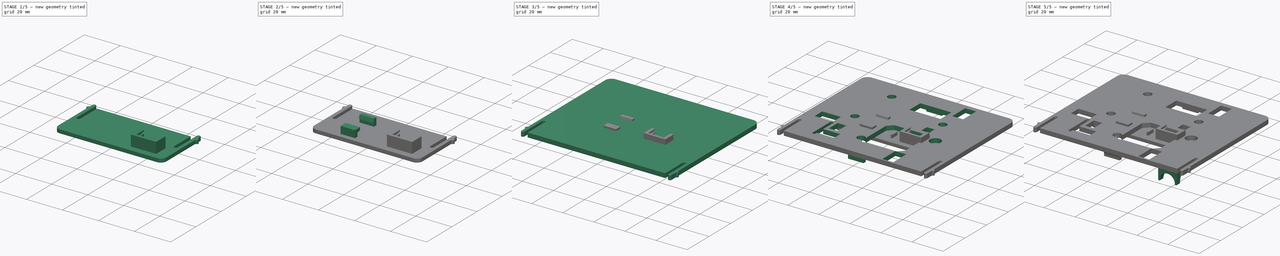
[diagram: build sequence overview — one tinted view per stage of 5, left to right]
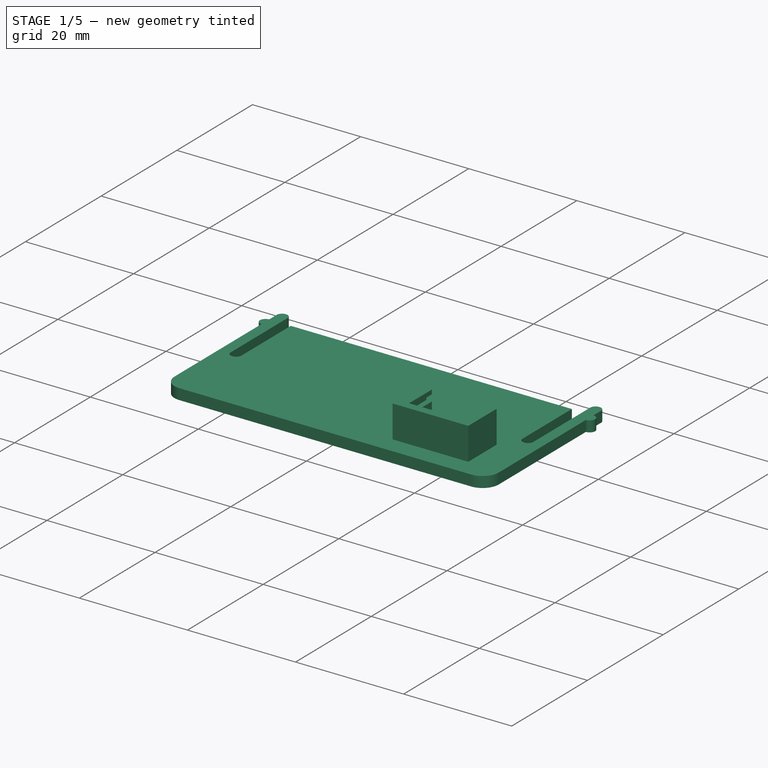
[diagram: stage 1 of 5 — iso view after this stage's code; geometry added in this stage tinted green]
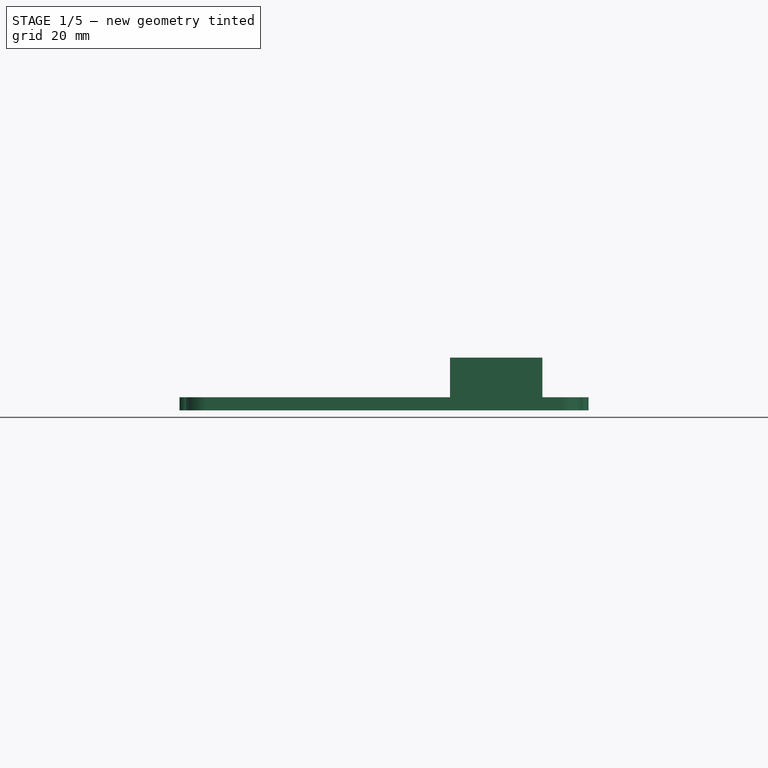
[diagram: stage 1 of 5 — front view after this stage's code; geometry added in this stage tinted green]
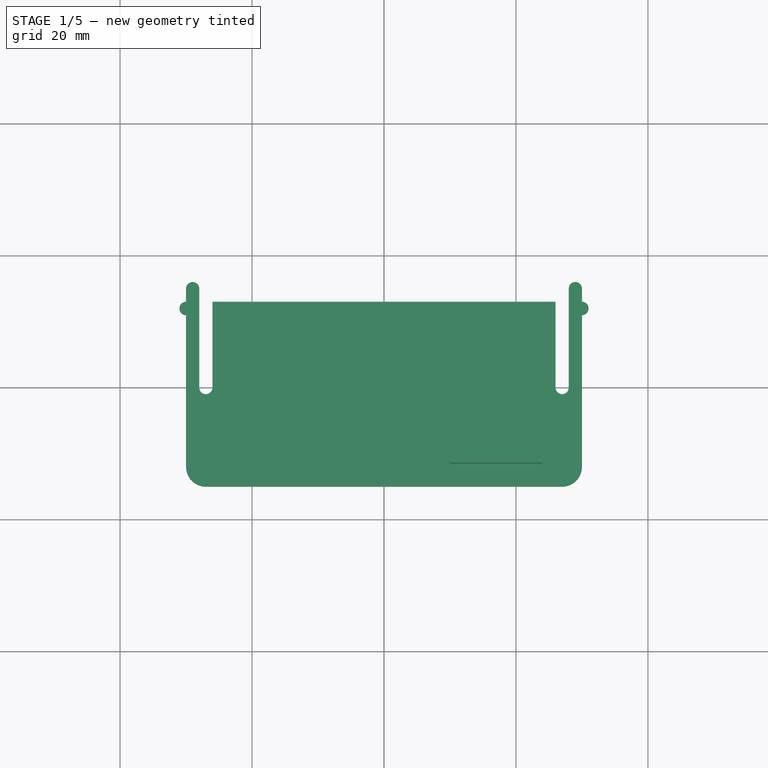
[diagram: stage 1 of 5 — top view after this stage's code; geometry added in this stage tinted green]
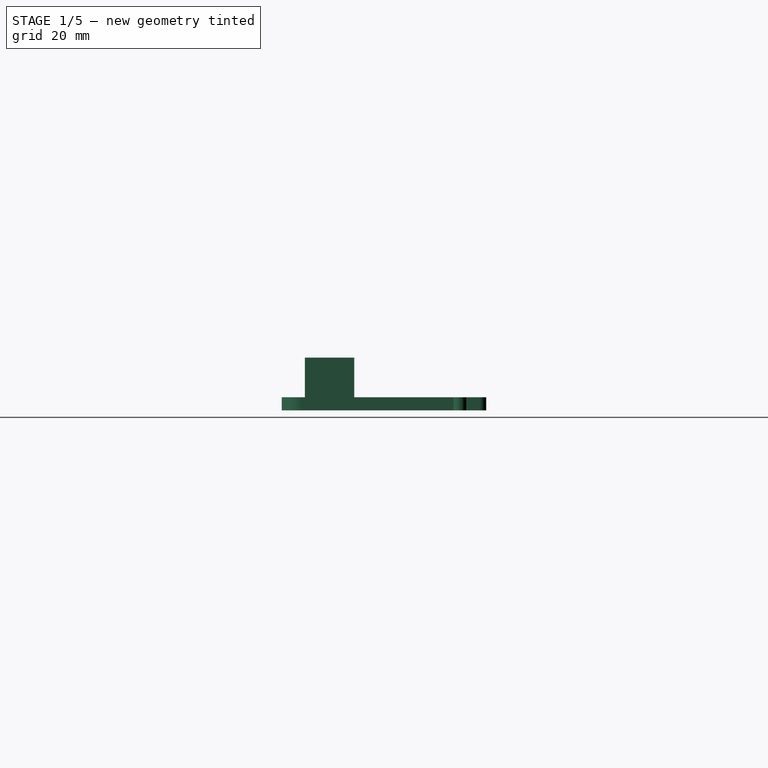
[diagram: stage 1 of 5 — right view after this stage's code; geometry added in this stage tinted green]
FCSTD DOCUMENT  (FreeCAD 1.0RUnknown)
Label: Sensors_mount
License: All rights reserved
LicenseURL: http://en.wikipedia.org/wiki/All_rights_reserved
objects: Sketcher::SketchObject×14, PartDesign::Pad×9, PartDesign::Pocket×5, PartDesign::Fillet×3, PartDesign::Body×2
note: 81 computed .brp shape members not serialized (recipe doc carries the construction recipe); baked Part::Feature solids carry a one-line shape summary decoded from their .brp

FEATURE [PartDesign::Body] Body001  label="sds mount"
  AllowCompound = false
  Group = -> [Sketch009,Pad006,Sketch010,Pocket003,Sketch011,Pad007,Sketch012,Pocket004,Fillet,Sketch013,Pad008,Fillet001,Fillet002]
  Origin = -> Origin001
  Tip = -> Fillet002
FEATURE [Sketcher::SketchObject] Sketch
  ArcFitTolerance = 1e-06
  AttachmentSupport = -> [XY_Plane,XZ_Plane]
  FullyConstrained = true
  MakeInternals = false
  MapMode = 5
  sketch-geometry (20):
    g0: LineSegment StartX=-30 StartY=11 StartZ=0 EndX=-30 EndY=-12 EndZ=0
    g1: LineSegment StartX=30 StartY=11 StartZ=0 EndX=30 EndY=-12 EndZ=0
    g2: LineSegment StartX=-27 StartY=-15 StartZ=0 EndX=27 EndY=-15 EndZ=0
    g3: ArcOfCircle CenterX=-27 CenterY=-12 CenterZ=0 NormalX=0 NormalY=0 NormalZ=1 AngleXU=0 Radius=3 StartAngle=3.14159 EndAngle=4.71239
    g4: ArcOfCircle CenterX=27 CenterY=-12 CenterZ=0 NormalX=0 NormalY=0 NormalZ=1 AngleXU=0 Radius=3 StartAngle=4.71239 EndAngle=6.28319
    g5: LineSegment StartX=-26 StartY=13 StartZ=0 EndX=26 EndY=13 EndZ=0
    g6: LineSegment StartX=26 StartY=13 StartZ=0 EndX=26 EndY=0 EndZ=0
    g7: LineSegment StartX=-26 StartY=13 StartZ=0 EndX=-26 EndY=0 EndZ=0
    g8: LineSegment StartX=-28 StartY=15 StartZ=0 EndX=-28 EndY=0 EndZ=0
    g9: LineSegment StartX=28 StartY=15 StartZ=0 EndX=28 EndY=0 EndZ=0
    g10: ArcOfCircle CenterX=-27 CenterY=0 CenterZ=0 NormalX=0 NormalY=0 NormalZ=1 AngleXU=0 Radius=1 StartAngle=3.14159 EndAngle=6.28319
    g11: ArcOfCircle CenterX=27 CenterY=0 CenterZ=0 NormalX=0 NormalY=0 NormalZ=1 AngleXU=0 Radius=1 StartAngle=3.14159 EndAngle=6.28319
    g12: ArcOfCircle CenterX=-30 CenterY=12 CenterZ=0 NormalX=0 NormalY=0 NormalZ=1 AngleXU=0 Radius=1 StartAngle=1.5708 EndAngle=4.71239
    g13: ArcOfCircle CenterX=30 CenterY=12 CenterZ=0 NormalX=0 NormalY=0 NormalZ=1 AngleXU=0 Radius=1 StartAngle=4.71239 EndAngle=7.85398
    g14: LineSegment StartX=-30 StartY=13 StartZ=0 EndX=-30 EndY=15 EndZ=0
    g15: LineSegment StartX=30 StartY=13 StartZ=0 EndX=30 EndY=15 EndZ=0
    g16: ArcOfCircle CenterX=29 CenterY=15 CenterZ=0 NormalX=0 NormalY=0 NormalZ=1 AngleXU=0 Radius=1 StartAngle=1.87e-14 EndAngle=3.14159
    g17: LineSegment [constr] StartX=28 StartY=15 StartZ=0 EndX=30 EndY=15 EndZ=0
    g18: LineSegment [constr] StartX=-30 StartY=15 StartZ=0 EndX=-28 EndY=15 EndZ=0
    g19: ArcOfCircle CenterX=-29 CenterY=15 CenterZ=0 NormalX=0 NormalY=0 NormalZ=1 AngleXU=0 Radius=1 StartAngle=6.2e-15 EndAngle=3.14159
  constraints (64):
    c: Vertical(g0)
    c: Vertical(g1)
    c: Coincident(g3,g0)
    c: Coincident(g3,g2)
    c: Coincident(g4,g2)
    c: Horizontal(g1,g4)
    c: Horizontal(g0,g3)
    c: Vertical(g3,g2)
    c: Vertical(g4,g2)
    c: Distance(g1,g0) = 60
    c: Equal(g0,g1)
    c: Symmetric(g3,g4,g-2)
    c: Horizontal(g2)
    c: Radius(g3) = 3
    c: Horizontal(g5)
    c: Coincident(g6,g5)
    c: Vertical(g6)
    c: Coincident(g7,g5)
    c: Vertical(g7)
    c: Vertical(g8)
    c: Vertical(g9)
    c: Coincident(g10,g8)
    c: Coincident(g10,g7)
    c: Coincident(g11,g6)
    c: Coincident(g11,g9)
    c: Horizontal(g8,g10)
    c: Horizontal(g10,g7)
    c: Horizontal(g6,g11)
    c: Horizontal(g11,g9)
    c: Distance(g2,g5) = 28
    c: Coincident(g12,g0)
    c: Coincident(g13,g1)
    c: Vertical(g0,g12)
    c: Vertical(g12,g12)
    c: Vertical(g1,g13)
    c: Vertical(g13,g13)
    c: Radius(g13) = 1
    c: Radius(g10) = 1
    c: Coincident(g1,g4)
    c: DistanceX(g12,g8) = 2
    c: Symmetric(g10,g11,g-1)
    c: Horizontal(g8,g9)
    c: Distance(g14) = 2
    c: Coincident(g14,g12)
    c: Vertical(g14)
    c: Coincident(g15,g13)
    c: Vertical(g15)
    c: Equal(g15,g14)
    c: Coincident(g16,g9)
    c: Coincident(g16,g15)
    c: Coincident(g17,g9)
    c: Coincident(g17,g15)
    c: Coincident(g18,g14)
    c: Coincident(g18,g8)
    c: Horizontal(g18)
    c: PointOnObject(g16,g17)
    c: Horizontal(g17)
    c: Coincident(g19,g14)
    c: Coincident(g19,g8)
    c: PointOnObject(g19,g18)
    c: Equal(g18,g17)
    c: Radius(g12) = 1
    c: Horizontal(g12,g5)
    c: DistanceY(g6,g6) = 13
FEATURE [PartDesign::Pad] Pad
  Direction = (0,0,1)
  Length = 2
  Length2 = 10
  Profile = -> Sketch
  ReferenceAxis = -> Sketch [N_Axis]
  Reversed = true
  Suppressed = false
  Type = 0
FEATURE [Sketcher::SketchObject] Sketch001
  ArcFitTolerance = 1e-06
  AttachmentSupport = -> [Pad]
  FullyConstrained = true
  MakeInternals = false
  MapMode = 5
  sketch-geometry (8):
    g0: LineSegment StartX=22 StartY=-10 StartZ=0 EndX=22 EndY=-4 EndZ=0
    g1: LineSegment StartX=22 StartY=-4 StartZ=0 EndX=24 EndY=-4 EndZ=0
    g2: LineSegment StartX=24 StartY=-4 StartZ=0 EndX=24 EndY=-11.5 EndZ=0
    g3: LineSegment StartX=24 StartY=-11.5 StartZ=0 EndX=10 EndY=-11.5 EndZ=0
    g4: LineSegment StartX=10 StartY=-11.5 StartZ=0 EndX=10 EndY=-4 EndZ=0
    g5: LineSegment StartX=10 StartY=-4 StartZ=0 EndX=12 EndY=-4 EndZ=0
    g6: LineSegment StartX=12 StartY=-4 StartZ=0 EndX=12 EndY=-10 EndZ=0
    g7: LineSegment StartX=12 StartY=-10 StartZ=0 EndX=22 EndY=-10 EndZ=0
  constraints (24):
    c: Vertical(g0)
    c: Coincident(g1,g0)
    c: Horizontal(g1)
    c: Vertical(g2)
    c: Coincident(g3,g2)
    c: Horizontal(g3)
    c: Coincident(g4,g3)
    c: Vertical(g4)
    c: Coincident(g5,g4)
    c: Horizontal(g5)
    c: Coincident(g6,g5)
    c: Vertical(g6)
    c: Coincident(g7,g6)
    c: Coincident(g7,g0)
    c: Horizontal(g7)
    c: Equal(g1,g5)
    c: Equal(g4,g2)
    c: Distance(g3,g7) = 1.5
    c: DistanceY(g0,g0) = 6
    c: Coincident(g2,g1)
    c: DistanceX(g7,g7) = 10
    c: Distance(g1,g1) = 2
    c: DistanceX(g-1,g4) = 10
    c: Distance(g4,g-1) = 4
FEATURE [PartDesign::Pad] Pad001
  BaseFeature = -> Pad
  Direction = (0,0,1)
  Length = 6
  Length2 = 10
  Profile = -> Sketch001
  ReferenceAxis = -> Sketch001 [N_Axis]
  Suppressed = false
  Type = 0
FEATURE [Sketcher::SketchObject] Sketch002
  ArcFitTolerance = 1e-06
  AttachmentSupport = -> [Pad001]
  FullyConstrained = true
  MakeInternals = false
  MapMode = 5
  Placement = pos=(0,-4,0) rot=(0,0.707107,0.707107;3.14159rad)
  sketch-geometry (8):
    g0: LineSegment StartX=-23 StartY=5.2 StartZ=0 EndX=-23 EndY=4 EndZ=0
    g1: LineSegment StartX=-23 StartY=4 StartZ=0 EndX=-11 EndY=4 EndZ=0
    g2: LineSegment StartX=-11 StartY=4 StartZ=0 EndX=-11 EndY=5.2 EndZ=0
    g3: LineSegment StartX=-11 StartY=5.2 StartZ=0 EndX=-12 EndY=5.2 EndZ=0
    g4: LineSegment StartX=-23 StartY=5.2 StartZ=0 EndX=-22 EndY=5.2 EndZ=0
    g5: LineSegment StartX=-22 StartY=5.2 StartZ=0 EndX=-22 EndY=8 EndZ=0
    g6: LineSegment StartX=-22 StartY=8 StartZ=0 EndX=-12 EndY=8 EndZ=0
    g7: LineSegment StartX=-12 StartY=5.2 StartZ=0 EndX=-12 EndY=8 EndZ=0
  constraints (24):
    c: Coincident(g0,g1)
    c: Coincident(g1,g2)
    c: Vertical(g0)
    c: Vertical(g2)
    c: Horizontal(g1)
    c: Distance(g0,g2) = 12
    c: Distance(g1,g0) = 1.2
    c: Distance(g-2,g2) = 11
    c: Coincident(g3,g2)
    c: Horizontal(g3)
    c: Coincident(g4,g0)
    c: Horizontal(g4)
    c: Coincident(g5,g4)
    c: Coincident(g6,g5)
    c: Horizontal(g6)
    c: Coincident(g7,g3)
    c: Coincident(g7,g6)
    c: Vertical(g7)
    c: Distance(g-1,g1) = 4
    c: Equal(g0,g2)
    c: DistanceX(g3,g3) = 1
    c: Distance(g4,g4) = 1
    c: Distance(g-1,g6) = 8
    c: Vertical(g5)
FEATURE [PartDesign::Pocket] Pocket
  BaseFeature = -> Pad001
  Direction = (0,-1,2e-16)
  Length = 6
  Length2 = 5
  Profile = -> Sketch002
  ReferenceAxis = -> Sketch002 [N_Axis]
  Suppressed = false
  Type = 0
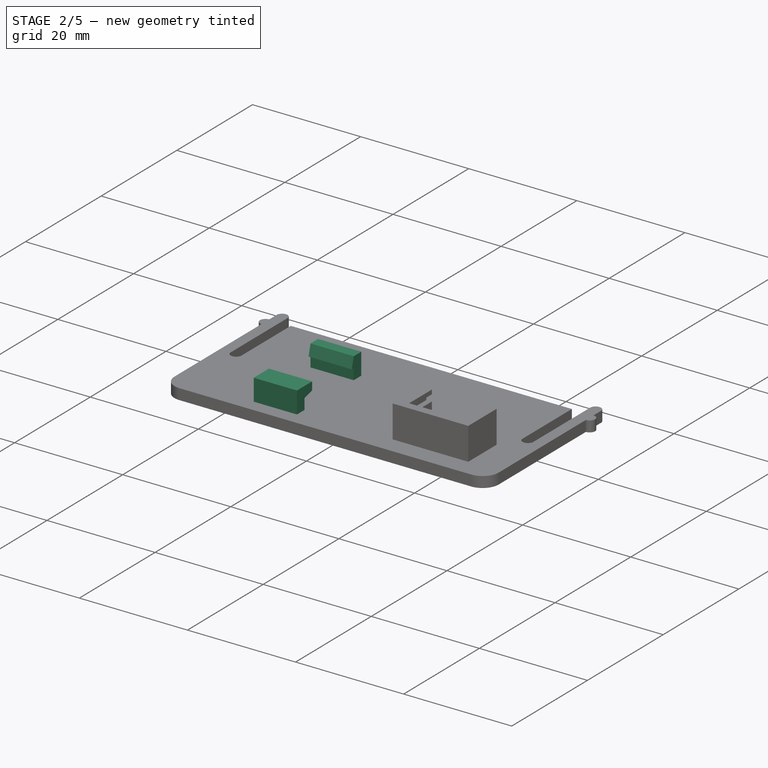
[diagram: stage 2 of 5 — iso view after this stage's code; geometry added in this stage tinted green]
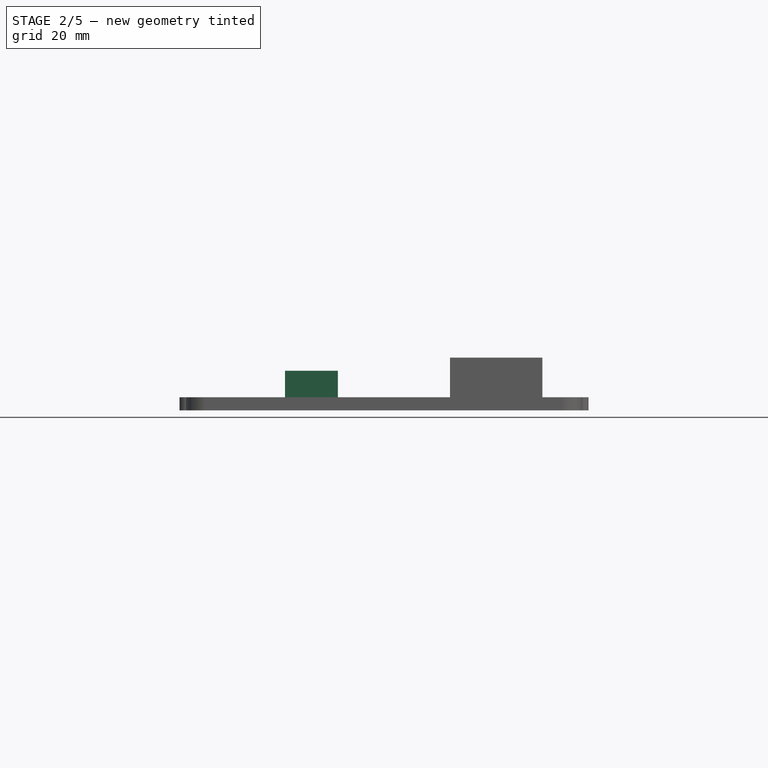
[diagram: stage 2 of 5 — front view after this stage's code; geometry added in this stage tinted green]
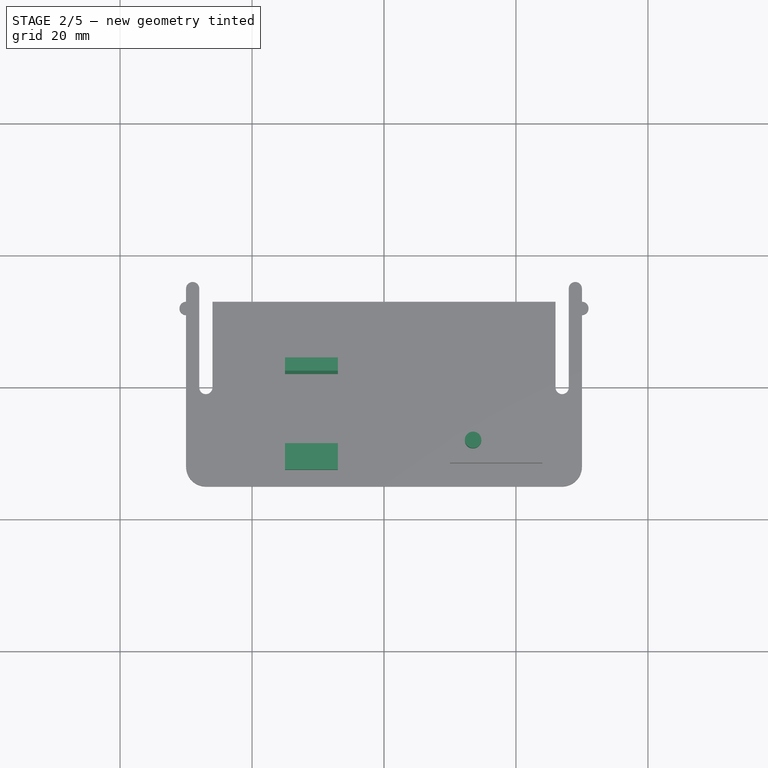
[diagram: stage 2 of 5 — top view after this stage's code; geometry added in this stage tinted green]
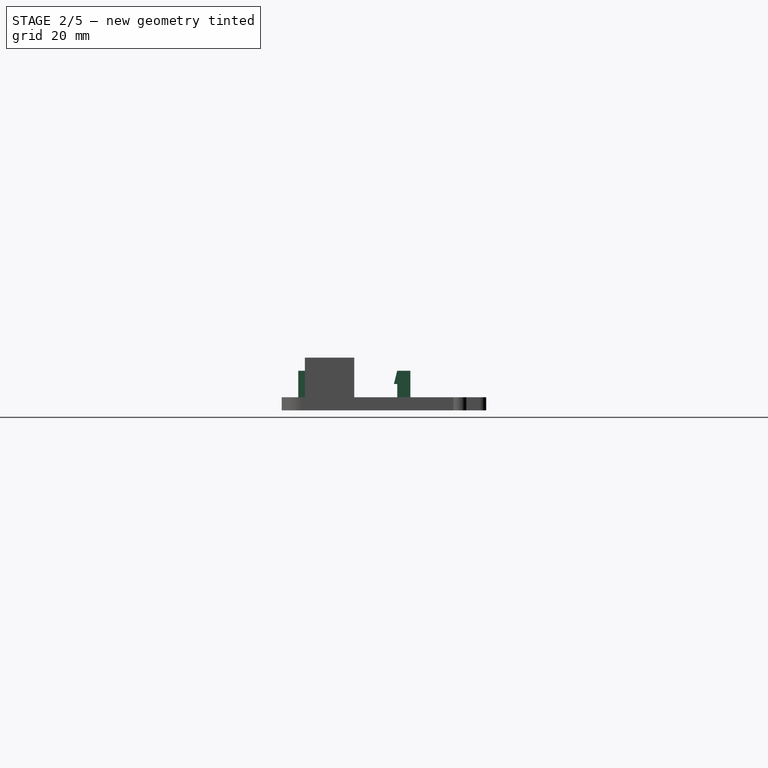
[diagram: stage 2 of 5 — right view after this stage's code; geometry added in this stage tinted green]
FEATURE [Sketcher::SketchObject] Sketch003
  ArcFitTolerance = 1e-06
  AttachmentSupport = -> [Pocket]
  FullyConstrained = true
  MakeInternals = false
  MapMode = 5
  sketch-geometry (1):
    g0: Circle CenterX=13.5 CenterY=-8 CenterZ=0 NormalX=0 NormalY=0 NormalZ=1 AngleXU=0 Radius=1.25
  constraints (3):
    c: Diameter(g0) = 2.5
    c: Distance(g0,g-2) = 13.5
    c: Distance(g0,g-1) = 8
FEATURE [PartDesign::Pad] Pad002
  BaseFeature = -> Pocket
  Direction = (0,0,1)
  Length = 6.5
  Length2 = 10
  Profile = -> Sketch003
  ReferenceAxis = -> Sketch003 [N_Axis]
  Suppressed = false
  Type = 0
FEATURE [Sketcher::SketchObject] Sketch004
  ArcFitTolerance = 1e-06
  AttachmentSupport = -> [Pad002]
  FullyConstrained = true
  MakeInternals = false
  MapMode = 5
  Placement = pos=(23,0,0) rot=(0.57735,-0.57735,-0.57735;2.0944rad)
  sketch-geometry (4):
    g0: LineSegment StartX=10 StartY=4.8 StartZ=0 EndX=4 EndY=3.25 EndZ=0
    g1: LineSegment StartX=4 StartY=3.25 StartZ=0 EndX=4 EndY=5.5 EndZ=0
    g2: LineSegment StartX=4 StartY=5.5 StartZ=0 EndX=10 EndY=5.5 EndZ=0
    g3: LineSegment StartX=10 StartY=5.5 StartZ=0 EndX=10 EndY=4.8 EndZ=0
  constraints (12):
    c: Coincident(g1,g0)
    c: Vertical(g1)
    c: Coincident(g2,g1)
    c: Horizontal(g2)
    c: Coincident(g3,g2)
    c: Coincident(g3,g0)
    c: Vertical(g3)
    c: DistanceY(g1,g1) = 2.25
    c: DistanceY(g3,g3) = 0.7
    c: DistanceX(g2,g2) = 6
    c: Distance(g-2,g1) = 4
    c: DistanceY(g-1,g0) = 3.25
FEATURE [PartDesign::Pocket] Pocket001
  BaseFeature = -> Pad002
  Direction = (1,0,0)
  Length = 11
  Length2 = -8
  Profile = -> Sketch004
  ReferenceAxis = -> Sketch004 [N_Axis]
  Reversed = true
  Suppressed = false
  Type = 4
FEATURE [Sketcher::SketchObject] Sketch005
  ArcFitTolerance = 1e-06
  AttachmentSupport = -> [Pocket001]
  FullyConstrained = true
  MakeInternals = false
  MapMode = 5
  sketch-geometry (8):
    g0: LineSegment StartX=-15 StartY=-8.5 StartZ=0 EndX=-15 EndY=-12.5 EndZ=0
    g1: LineSegment StartX=-15 StartY=-12.5 StartZ=0 EndX=-7 EndY=-12.5 EndZ=0
    g2: LineSegment StartX=-7 StartY=-12.5 StartZ=0 EndX=-7 EndY=-8.5 EndZ=0
    g3: LineSegment StartX=-7 StartY=-8.5 StartZ=0 EndX=-15 EndY=-8.5 EndZ=0
    g4: LineSegment StartX=-15 StartY=4.5 StartZ=0 EndX=-15 EndY=2 EndZ=0
    g5: LineSegment StartX=-15 StartY=2 StartZ=0 EndX=-7 EndY=2 EndZ=0
    g6: LineSegment StartX=-7 StartY=2 StartZ=0 EndX=-7 EndY=4.5 EndZ=0
    g7: LineSegment StartX=-7 StartY=4.5 StartZ=0 EndX=-15 EndY=4.5 EndZ=0
  constraints (24):
    c: Coincident(g0,g1)
    c: Coincident(g1,g2)
    c: Coincident(g2,g3)
    c: Coincident(g3,g0)
    c: Vertical(g0)
    c: Vertical(g2)
    c: Horizontal(g1)
    c: Horizontal(g3)
    c: Distance(g1,g3) = 4
    c: Distance(g-2,g2) = 7
    c: Distance(g-1,g1) = 12.5
    c: Coincident(g4,g5)
    c: Coincident(g5,g6)
    c: Coincident(g6,g7)
    c: Coincident(g7,g4)
    c: Vertical(g4)
    c: Vertical(g6)
    c: Horizontal(g5)
    c: Horizontal(g7)
    c: Distance(g4,g6) = 8
    c: Distance(g5,g7) = 2.5
    c: Distance(g7,g1) = 17
    c: Vertical(g5,g2)
    c: Equal(g3,g5)
FEATURE [PartDesign::Pad] Pad003
  BaseFeature = -> Pocket001
  Direction = (0,0,1)
  Length = 4
  Length2 = 10
  Profile = -> Sketch005
  ReferenceAxis = -> Sketch005 [N_Axis]
  Suppressed = false
  Type = 0
FEATURE [Sketcher::SketchObject] Sketch006
  ArcFitTolerance = 1e-06
  AttachmentSupport = -> [Pad003]
  FullyConstrained = true
  MakeInternals = false
  MapMode = 5
  Placement = pos=(-15,0,0) rot=(0.57735,-0.57735,-0.57735;2.0944rad)
  sketch-geometry (9):
    g0: LineSegment StartX=-2.5 StartY=4 StartZ=0 EndX=-2 EndY=2 EndZ=0
    g1: LineSegment StartX=-2 StartY=2 StartZ=0 EndX=-2.5 EndY=2 EndZ=0
    g2: LineSegment StartX=-2.5 StartY=2 StartZ=0 EndX=-2.5 EndY=0 EndZ=0
    g3: LineSegment StartX=-2.5 StartY=0 StartZ=0 EndX=10.5 EndY=0 EndZ=0
    g4: LineSegment StartX=10.5 StartY=0 StartZ=0 EndX=10.5 EndY=2 EndZ=0
    g5: LineSegment StartX=10.5 StartY=2 StartZ=0 EndX=8.5 EndY=2.5 EndZ=0
    g6: LineSegment StartX=-2.5 StartY=4 StartZ=0 EndX=0 EndY=4 EndZ=0
    g7: LineSegment StartX=0 StartY=4 StartZ=0 EndX=0 EndY=2.5 EndZ=0
    g8: LineSegment StartX=0 StartY=2.5 StartZ=0 EndX=8.5 EndY=2.5 EndZ=0
  constraints (27):
    c: Coincident(g1,g0)
    c: Horizontal(g1)
    c: Distance(g1,g1) = 0.5
    c: Vertical(g1,g0)
    c: Coincident(g2,g1)
    c: PointOnObject(g2,g-1)
    c: Vertical(g2)
    c: Coincident(g3,g2)
    c: PointOnObject(g3,g-1)
    c: Distance(g4) = 2
    c: Coincident(g4,g3)
    c: Vertical(g4)
    c: Coincident(g5,g4)
    c: Coincident(g6,g0)
    c: Horizontal(g6)
    c: Coincident(g7,g6)
    c: Vertical(g7)
    c: Coincident(g8,g5)
    c: Coincident(g8,g7)
    c: Distance(g4,g2) = 13
    c: Distance(g3,g6) = 4
    c: Distance(g2,g-2) = 2.5
    c: Distance(g3,g8) = 2.5
    c: Horizontal(g8)
    c: DistanceX(g5,g4) = 2
    c: DistanceX(g6,g6) = 2.5
    c: Horizontal(g2,g4)
FEATURE [PartDesign::Pocket] Pocket002
  BaseFeature = -> Pad003
  Direction = (1,0,0)
  Length = 8
  Length2 = 5
  Profile = -> Sketch006
  ReferenceAxis = -> Sketch006 [N_Axis]
  Suppressed = false
  Type = 0
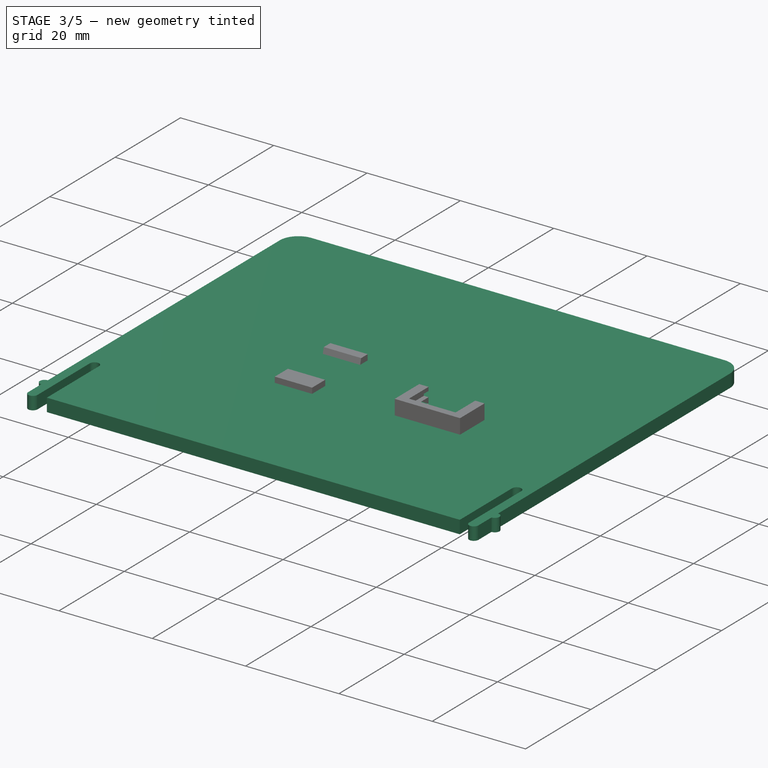
[diagram: stage 3 of 5 — iso view after this stage's code; geometry added in this stage tinted green]
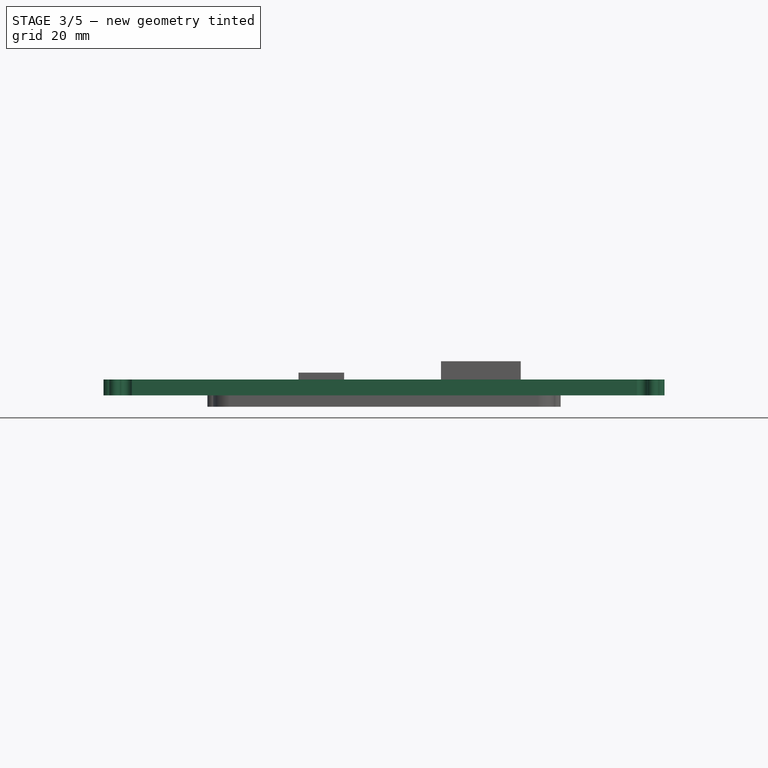
[diagram: stage 3 of 5 — front view after this stage's code; geometry added in this stage tinted green]
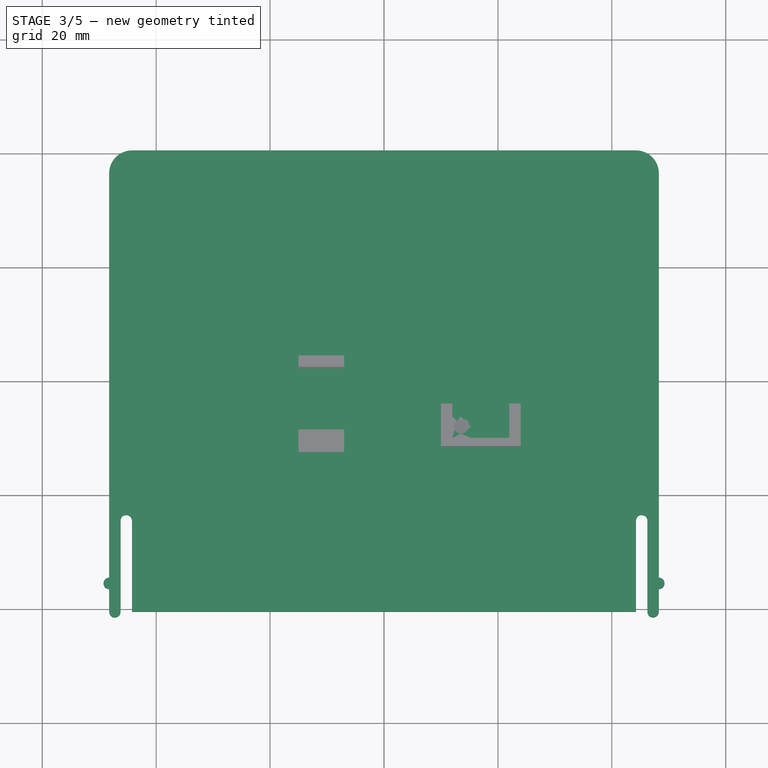
[diagram: stage 3 of 5 — top view after this stage's code; geometry added in this stage tinted green]
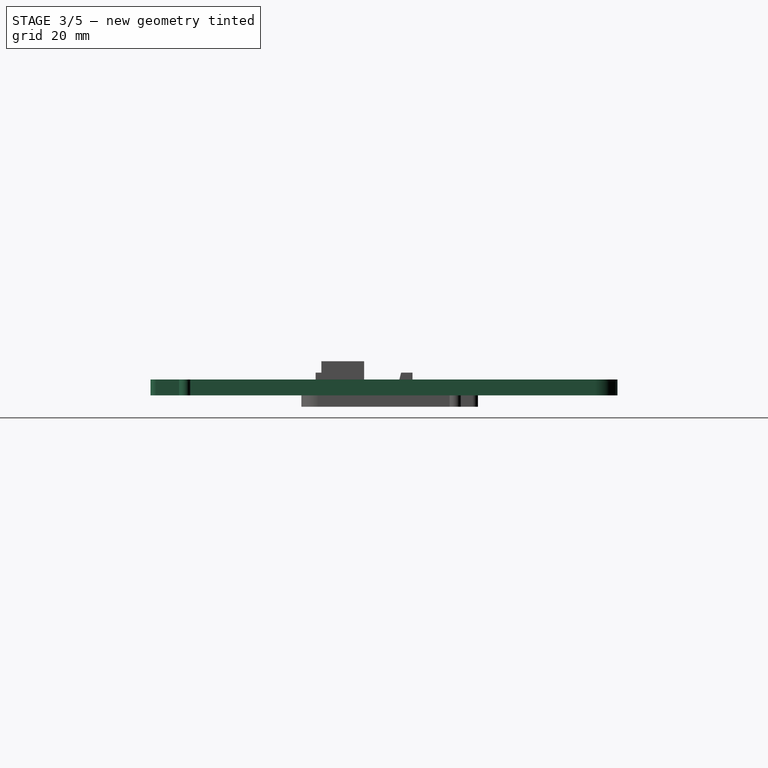
[diagram: stage 3 of 5 — right view after this stage's code; geometry added in this stage tinted green]
FEATURE [Sketcher::SketchObject] Sketch009
  ArcFitTolerance = 1e-06
  AttachmentSupport = -> [XY_Plane001]
  FullyConstrained = true
  MakeInternals = false
  MapMode = 5
  sketch-geometry (24):
    g0: LineSegment StartX=-48.25 StartY=36.5 StartZ=0 EndX=-48.25 EndY=-34.5 EndZ=0
    g1: LineSegment StartX=-44.25 StartY=40.5 StartZ=0 EndX=44.25 EndY=40.5 EndZ=0
    g2: LineSegment StartX=48.25 StartY=36.5 StartZ=0 EndX=48.25 EndY=-34.5 EndZ=0
    g3: ArcOfCircle CenterX=-44.25 CenterY=36.5 CenterZ=0 NormalX=0 NormalY=0 NormalZ=1 AngleXU=0 Radius=4 StartAngle=1.5708 EndAngle=3.14159
    g4: ArcOfCircle CenterX=44.25 CenterY=36.5 CenterZ=0 NormalX=0 NormalY=0 NormalZ=1 AngleXU=0 Radius=4 StartAngle=0 EndAngle=1.5708
    g5: ArcOfCircle CenterX=-48.25 CenterY=-35.5 CenterZ=0 NormalX=0 NormalY=0 NormalZ=1 AngleXU=0 Radius=1 StartAngle=1.5708 EndAngle=4.71239
    g6: ArcOfCircle CenterX=48.25 CenterY=-35.5 CenterZ=0 NormalX=0 NormalY=0 NormalZ=1 AngleXU=0 Radius=1 StartAngle=4.71239 EndAngle=7.85398
    g7: ArcOfCircle CenterX=-47.25 CenterY=-40.5 CenterZ=0 NormalX=0 NormalY=0 NormalZ=1 AngleXU=0 Radius=1 StartAngle=3.14159 EndAngle=6.28319
    g8: ArcOfCircle CenterX=47.25 CenterY=-40.5 CenterZ=0 NormalX=0 NormalY=0 NormalZ=1 AngleXU=0 Radius=1 StartAngle=3.14159 EndAngle=6.28319
    g9: LineSegment [constr] StartX=-48.25 StartY=-34.5 StartZ=0 EndX=-48.25 EndY=-36.5 EndZ=0
    g10: LineSegment [constr] StartX=48.25 StartY=-34.5 StartZ=0 EndX=48.25 EndY=-36.5 EndZ=0
    g11: LineSegment StartX=-48.25 StartY=-36.5 StartZ=0 EndX=-48.25 EndY=-40.5 EndZ=0
    g12: LineSegment StartX=48.25 StartY=-36.5 StartZ=0 EndX=48.25 EndY=-40.5 EndZ=0
    g13: LineSegment StartX=46.25 StartY=-40.5 StartZ=0 EndX=46.25 EndY=-24.5 EndZ=0
    g14: LineSegment StartX=44.25 StartY=-24.5 StartZ=0 EndX=44.25 EndY=-40.5 EndZ=0
    g15: LineSegment StartX=-46.25 StartY=-40.5 StartZ=0 EndX=-46.25 EndY=-24.5 EndZ=0
    g16: LineSegment StartX=-44.25 StartY=-24.5 StartZ=0 EndX=-44.25 EndY=-40.5 EndZ=0
    g17: LineSegment StartX=-44.25 StartY=-40.5 StartZ=0 EndX=44.25 EndY=-40.5 EndZ=0
    g18: ArcOfCircle CenterX=-45.25 CenterY=-24.5 CenterZ=0 NormalX=0 NormalY=0 NormalZ=1 AngleXU=0 Radius=1 StartAngle=5e-16 EndAngle=3.14159
    g19: ArcOfCircle CenterX=45.25 CenterY=-24.5 CenterZ=0 NormalX=0 NormalY=0 NormalZ=1 AngleXU=0 Radius=1 StartAngle=2.24e-14 EndAngle=3.14159
    g20: LineSegment [constr] StartX=-48.25 StartY=-40.5 StartZ=0 EndX=-46.25 EndY=-40.5 EndZ=0
    g21: LineSegment [constr] StartX=-46.25 StartY=-24.5 StartZ=0 EndX=-44.25 EndY=-24.5 EndZ=0
    g22: LineSegment [constr] StartX=44.25 StartY=-24.5 StartZ=0 EndX=46.25 EndY=-24.5 EndZ=0
    g23: LineSegment [constr] StartX=46.25 StartY=-40.5 StartZ=0 EndX=48.25 EndY=-40.5 EndZ=0
  constraints (72):
    c: Vertical(g0)
    c: Vertical(g2)
    c: Coincident(g3,g0)
    c: Coincident(g3,g1)
    c: Coincident(g4,g1)
    c: Coincident(g4,g2)
    c: Vertical(g1,g3)
    c: Horizontal(g0,g3)
    c: Vertical(g1,g4)
    c: Horizontal(g4,g2)
    c: Horizontal(g0,g2)
    c: Distance(g0,g1) = 75
    c: Distance(g2,g0) = 96.5
    c: Radius(g3) = 4
    c: Horizontal(g4,g3)
    c: Coincident(g5,g0)
    c: Coincident(g6,g2)
    c: Coincident(g9,g0)
    c: Coincident(g9,g5)
    c: Vertical(g9)
    c: Coincident(g10,g2)
    c: Coincident(g10,g6)
    c: Vertical(g10)
    c: PointOnObject(g6,g10)
    c: PointOnObject(g5,g9)
    c: Equal(g9,g10)
    c: DistanceY(g9,g9) = 2
    c: Coincident(g11,g5)
    c: Coincident(g11,g7)
    c: Vertical(g11)
    c: Coincident(g12,g6)
    c: Coincident(g12,g8)
    c: Coincident(g13,g8)
    c: Vertical(g13)
    c: Vertical(g14)
    c: Coincident(g15,g7)
    c: Vertical(g15)
    c: Vertical(g16)
    c: Coincident(g17,g16)
    c: Coincident(g17,g14)
    c: Horizontal(g17)
    c: Coincident(g18,g15)
    c: Coincident(g18,g16)
    c: Coincident(g19,g14)
    c: Coincident(g19,g13)
    c: Horizontal(g16,g14)
    c: Vertical(g12)
    c: Coincident(g20,g7)
    c: Coincident(g20,g7)
    c: Coincident(g21,g15)
    c: Coincident(g21,g16)
    c: Coincident(g22,g14)
    c: Coincident(g22,g13)
    c: Coincident(g23,g8)
    c: Coincident(g23,g8)
    c: Horizontal(g23)
    c: PointOnObject(g8,g23)
    c: Horizontal(g8,g14)
    c: Horizontal(g22)
    c: PointOnObject(g19,g22)
    c: PointOnObject(g18,g21)
    c: Horizontal(g21)
    c: PointOnObject(g7,g20)
    c: Horizontal(g20)
    c: Horizontal(g7,g16)
    c: Equal(g23,g22)
    c: Equal(g22,g21)
    c: Equal(g21,g20)
    c: Symmetric(g1,g1,g-2)
    c: Distance(g17,g1) = 81
    c: DistanceY(g16,g16) = 16
    c: Symmetric(g14,g1,g-1)
FEATURE [PartDesign::Pad] Pad006
  Direction = (0,0,1)
  Length = 2.8
  Length2 = 10
  Profile = -> Sketch009
  ReferenceAxis = -> Sketch009 [N_Axis]
  Suppressed = false
  Type = 0
FEATURE [Sketcher::SketchObject] Sketch007
  ArcFitTolerance = 1e-06
  AttachmentSupport = -> [Pocket002]
  FullyConstrained = true
  MakeInternals = false
  MapMode = 5
  sketch-geometry (8):
    g0: LineSegment StartX=4.5 StartY=-10.5 StartZ=0 EndX=4.5 EndY=-5.5 EndZ=0
    g1: LineSegment StartX=4.5 StartY=-5.5 StartZ=0 EndX=3.5 EndY=-5.5 EndZ=0
    g2: LineSegment StartX=3.5 StartY=-5.5 StartZ=0 EndX=3.5 EndY=-10.5 EndZ=0
    g3: LineSegment StartX=3.5 StartY=-10.5 StartZ=0 EndX=4.5 EndY=-10.5 EndZ=0
    g4: LineSegment StartX=-25.5 StartY=-10.5 StartZ=0 EndX=-25.5 EndY=-5.5 EndZ=0
    g5: LineSegment StartX=-25.5 StartY=-5.5 StartZ=0 EndX=-26.5 EndY=-5.5 EndZ=0
    g6: LineSegment StartX=-26.5 StartY=-5.5 StartZ=0 EndX=-26.5 EndY=-10.5 EndZ=0
    g7: LineSegment StartX=-26.5 StartY=-10.5 StartZ=0 EndX=-25.5 EndY=-10.5 EndZ=0
  constraints (24):
    c: Coincident(g0,g1)
    c: Coincident(g1,g2)
    c: Coincident(g2,g3)
    c: Coincident(g3,g0)
    c: Vertical(g0)
    c: Vertical(g2)
    c: Horizontal(g1)
    c: Horizontal(g3)
    c: Distance(g1,g3) = 5
    c: Coincident(g4,g5)
    c: Coincident(g5,g6)
    c: Coincident(g6,g7)
    c: Coincident(g7,g4)
    c: Vertical(g4)
    c: Vertical(g6)
    c: Horizontal(g5)
    c: Horizontal(g7)
    c: Distance(g4,g6) = 1
    c: Equal(g0,g6)
    c: Distance(g2,g4) = 29
    c: Equal(g3,g7)
    c: Horizontal(g2,g4)
    c: Distance(g-1,g5) = 5.5
    c: Distance(g-2,g4) = 25.5
FEATURE [PartDesign::Pad] Pad004
  BaseFeature = -> Pocket002
  Direction = (0,0,1)
  Length = 2
  Length2 = 10
  Profile = -> Sketch007
  ReferenceAxis = -> Sketch007 [N_Axis]
  Suppressed = false
  Type = 0
FEATURE [Sketcher::SketchObject] Sketch008
  ArcFitTolerance = 1e-06
  AttachmentSupport = -> [Pad004]
  FullyConstrained = true
  MakeInternals = false
  MapMode = 5
  sketch-geometry (5):
    g0: LineSegment StartX=12 StartY=-10 StartZ=0 EndX=12 EndY=-6.25 EndZ=0
    g1: LineSegment StartX=12 StartY=-10 StartZ=0 EndX=15.25 EndY=-10 EndZ=0
    g2: LineSegment StartX=15.25 StartY=-10 StartZ=0 EndX=15.25 EndY=-8 EndZ=0
    g3: LineSegment StartX=12 StartY=-6.25 StartZ=0 EndX=13.5 EndY=-6.25 EndZ=0
    g4: ArcOfCircle CenterX=13.5 CenterY=-8 CenterZ=0 NormalX=0 NormalY=0 NormalZ=1 AngleXU=0 Radius=1.75 StartAngle=0 EndAngle=1.5708
  constraints (16):
    c: Vertical(g0)
    c: Coincident(g1,g0)
    c: Horizontal(g1)
    c: Coincident(g2,g1)
    c: Vertical(g2)
    c: Coincident(g3,g0)
    c: Horizontal(g3)
    c: Coincident(g4,g3)
    c: Coincident(g4,g2)
    c: Vertical(g4,g3)
    c: Horizontal(g4,g2)
    c: Radius(g4) = 1.75
    c: Distance(g4,g-1) = 8
    c: DistanceX(g-1,g4) = 13.5
    c: DistanceY(g2,g2) = 2
    c: DistanceX(g3,g3) = 1.5
FEATURE [PartDesign::Pad] Pad005
  BaseFeature = -> Pad004
  Direction = (0,0,1)
  Length = 4
  Length2 = 10
  Profile = -> Sketch008
  ReferenceAxis = -> Sketch008 [N_Axis]
  Suppressed = false
  Type = 0
FEATURE [PartDesign::Body] Body  label="sensors mount"
  AllowCompound = false
  Group = -> [Sketch,Pad,Sketch001,Pad001,Sketch002,Pocket,Sketch003,Pad002,Sketch004,Pocket001,Sketch005,Pad003,Sketch006,Pocket002,Sketch007,Pad004,Sketch008,Pad005]
  Origin = -> Origin
  Placement = pos=(0,-61,0) rot=(0,0,1;0rad)
  Tip = -> Pad005
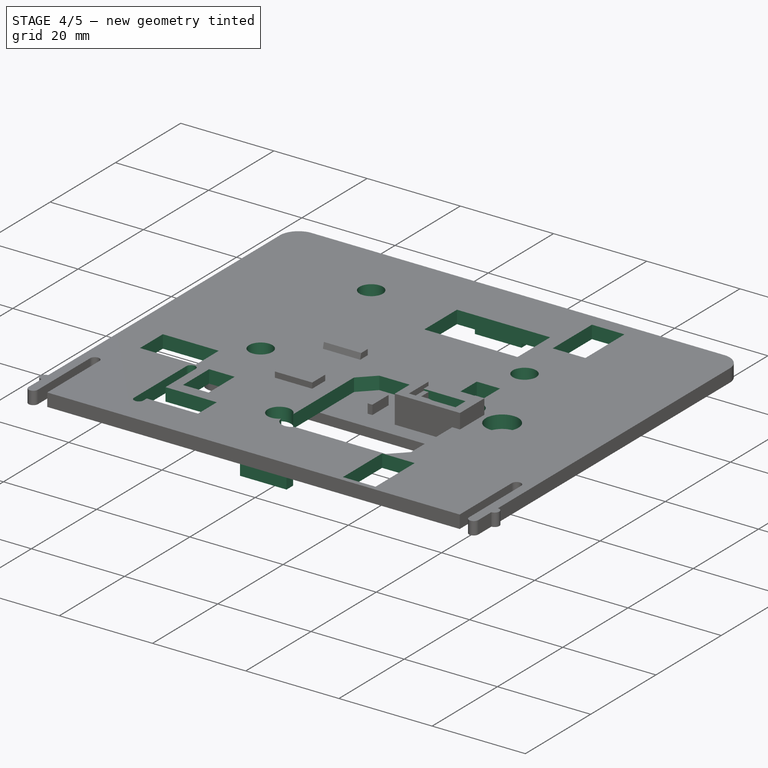
[diagram: stage 4 of 5 — iso view after this stage's code; geometry added in this stage tinted green]
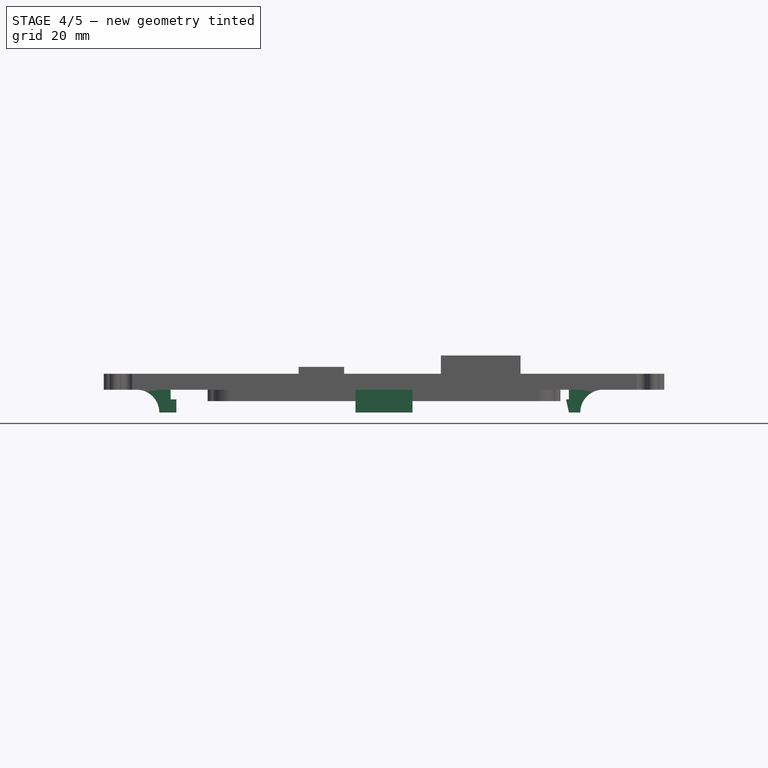
[diagram: stage 4 of 5 — front view after this stage's code; geometry added in this stage tinted green]
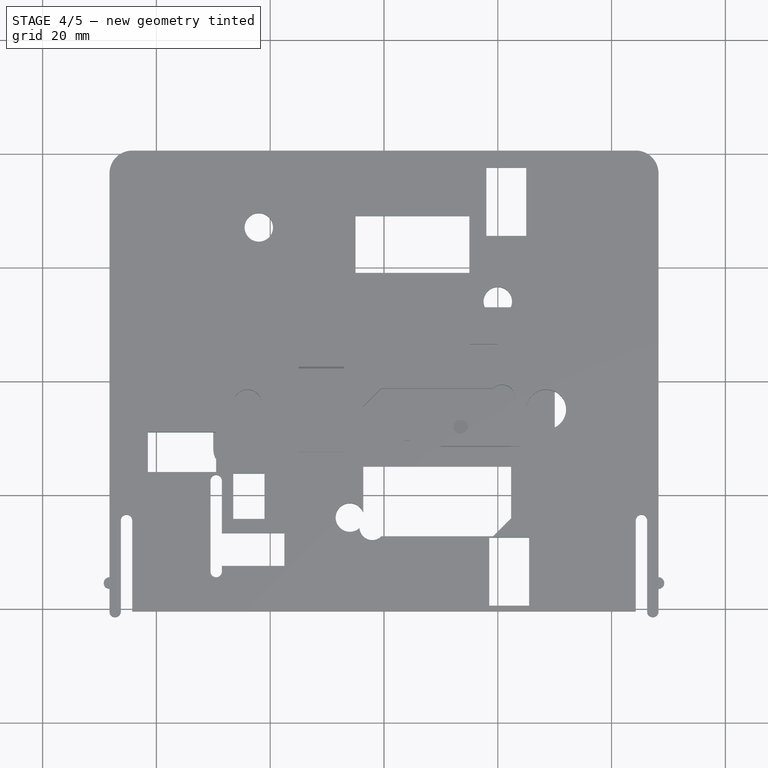
[diagram: stage 4 of 5 — top view after this stage's code; geometry added in this stage tinted green]
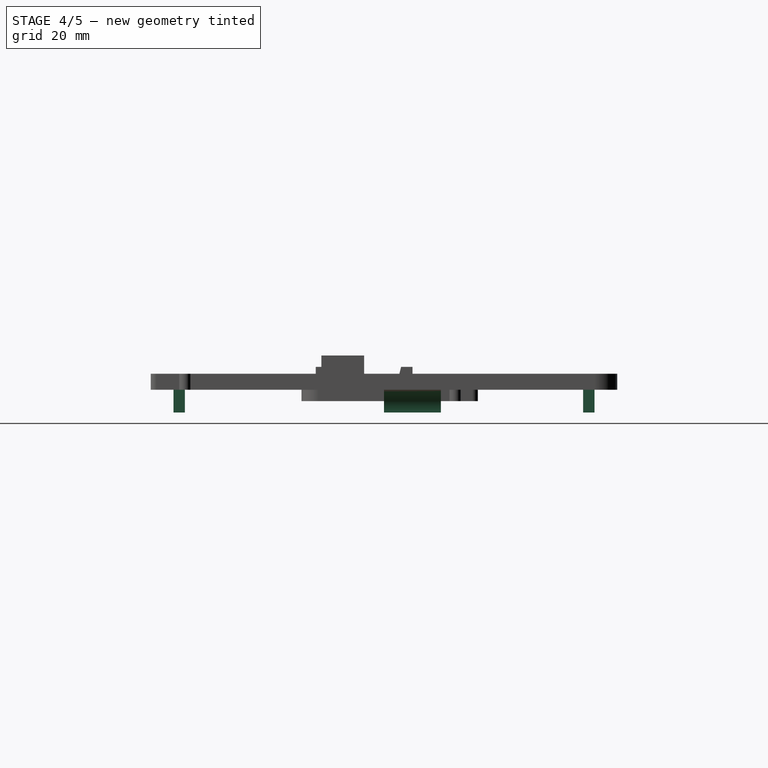
[diagram: stage 4 of 5 — right view after this stage's code; geometry added in this stage tinted green]
FEATURE [Sketcher::SketchObject] Sketch010
  ArcFitTolerance = 1e-06
  AttachmentSupport = -> [Pad006]
  FullyConstrained = true
  MakeInternals = false
  MapMode = 5
  Placement = pos=(0,0,2.8) rot=(0,0,1;0rad)
  sketch-geometry (51):
    g0: LineSegment [constr] StartX=-37.5 StartY=34.5 StartZ=0 EndX=-37.5 EndY=-35.5 EndZ=0
    g1: LineSegment [constr] StartX=-37.5 StartY=-35.5 StartZ=0 EndX=32.5 EndY=-35.5 EndZ=0
    g2: LineSegment [constr] StartX=32.5 StartY=-35.5 StartZ=0 EndX=32.5 EndY=34.5 EndZ=0
    g3: LineSegment [constr] StartX=32.5 StartY=34.5 StartZ=0 EndX=-37.5 EndY=34.5 EndZ=0
    g4: LineSegment StartX=-5 StartY=29 StartZ=0 EndX=-5 EndY=19 EndZ=0
    g5: LineSegment StartX=-5 StartY=19 StartZ=0 EndX=15 EndY=19 EndZ=0
    g6: LineSegment StartX=15 StartY=19 StartZ=0 EndX=15 EndY=29 EndZ=0
    g7: LineSegment StartX=15 StartY=29 StartZ=0 EndX=-5 EndY=29 EndZ=0
    g8: Circle CenterX=-22 CenterY=27 CenterZ=0 NormalX=0 NormalY=0 NormalZ=1 AngleXU=0 Radius=2.5
    g9: Circle CenterX=20 CenterY=14 CenterZ=0 NormalX=0 NormalY=0 NormalZ=1 AngleXU=0 Radius=2.5
    g10: Circle CenterX=-24 CenterY=-4 CenterZ=0 NormalX=0 NormalY=0 NormalZ=1 AngleXU=0 Radius=2.5
    g11: Circle CenterX=28.5 CenterY=-5 CenterZ=0 NormalX=0 NormalY=0 NormalZ=1 AngleXU=0 Radius=3.5
    g12: LineSegment StartX=18 StartY=37.5 StartZ=0 EndX=18 EndY=25.5 EndZ=0
    g13: LineSegment StartX=18 StartY=25.5 StartZ=0 EndX=25 EndY=25.5 EndZ=0
    g14: LineSegment StartX=25 StartY=25.5 StartZ=0 EndX=25 EndY=37.5 EndZ=0
    g15: LineSegment StartX=25 StartY=37.5 StartZ=0 EndX=18 EndY=37.5 EndZ=0
    g16: LineSegment StartX=18.5 StartY=-39.5 StartZ=0 EndX=25.5 EndY=-39.5 EndZ=0
    g17: LineSegment StartX=25.5 StartY=-39.5 StartZ=0 EndX=25.5 EndY=-27.5 EndZ=0
    g18: LineSegment StartX=25.5 StartY=-27.5 StartZ=0 EndX=18.5 EndY=-27.5 EndZ=0
    g19: LineSegment StartX=18.5 StartY=-27.5 StartZ=0 EndX=18.5 EndY=-39.5 EndZ=0
    g20: LineSegment StartX=-41.5 StartY=-9 StartZ=0 EndX=-41.5 EndY=-16 EndZ=0
    g21: LineSegment StartX=-41.5 StartY=-16 StartZ=0 EndX=-29.5 EndY=-16 EndZ=0
    g22: LineSegment StartX=-29.5 StartY=-16 StartZ=0 EndX=-29.5 EndY=-9 EndZ=0
    g23: LineSegment StartX=-29.5 StartY=-9 StartZ=0 EndX=-41.5 EndY=-9 EndZ=0
    g24: LineSegment StartX=-26.5 StartY=-16.25 StartZ=0 EndX=-26.5 EndY=-24.25 EndZ=0
    g25: LineSegment StartX=-26.5 StartY=-24.25 StartZ=0 EndX=-21 EndY=-24.25 EndZ=0
    g26: LineSegment StartX=-21 StartY=-24.25 StartZ=0 EndX=-21 EndY=-16.25 EndZ=0
    g27: LineSegment StartX=-21 StartY=-16.25 StartZ=0 EndX=-26.5 EndY=-16.25 EndZ=0
    g28: ArcOfCircle CenterX=-29.5 CenterY=-17.5 CenterZ=0 NormalX=0 NormalY=0 NormalZ=1 AngleXU=0 Radius=1 StartAngle=0 EndAngle=3.14159
    g29: ArcOfCircle CenterX=-29.5 CenterY=-33.5 CenterZ=0 NormalX=0 NormalY=0 NormalZ=1 AngleXU=0 Radius=1 StartAngle=3.14159 EndAngle=6.28319
    g30: LineSegment StartX=-30.5 StartY=-17.5 StartZ=0 EndX=-30.5 EndY=-33.5 EndZ=0
    g31: LineSegment StartX=-28.5 StartY=-17.5 StartZ=0 EndX=-28.5 EndY=-26.75 EndZ=0
    g32: LineSegment StartX=-28.5 StartY=-26.75 StartZ=0 EndX=-17.5 EndY=-26.75 EndZ=0
    g33: LineSegment StartX=-17.5 StartY=-26.75 StartZ=0 EndX=-17.5 EndY=-32.5 EndZ=0
    g34: LineSegment StartX=-17.5 StartY=-32.5 StartZ=0 EndX=-28.5 EndY=-32.5 EndZ=0
    g35: LineSegment StartX=-28.5 StartY=-33.5 StartZ=0 EndX=-28.5 EndY=-32.5 EndZ=0
    g36: ArcOfCircle CenterX=20.759 CenterY=-2.89099 CenterZ=0 NormalX=0 NormalY=0 NormalZ=1 AngleXU=0 Radius=2.25 StartAngle=5.49779 EndAngle=8.63938
    g37: ArcOfCircle CenterX=-6 CenterY=-24 CenterZ=0 NormalX=0 NormalY=0 NormalZ=1 AngleXU=0 Radius=2.5 StartAngle=0.348166 EndAngle=5.45726
    g38: ArcOfCircle CenterX=-2.05901 CenterY=-25.709 CenterZ=0 NormalX=0 NormalY=0 NormalZ=1 AngleXU=0 Radius=2.25 StartAngle=3.19893 EndAngle=5.49779
    g39: LineSegment StartX=-3.65 StartY=-23.1471 StartZ=0 EndX=-3.65 EndY=-4.48198 EndZ=0
    g40: LineSegment StartX=-3.65 StartY=-4.48198 StartZ=0 EndX=-0.468019 EndY=-1.3 EndZ=0
    g41: LineSegment StartX=-0.468019 StartY=-1.3 StartZ=0 EndX=19.168 EndY=-1.3 EndZ=0
    g42: LineSegment StartX=22.35 StartY=-4.48198 StartZ=0 EndX=22.35 EndY=-24.118 EndZ=0
    g43: LineSegment StartX=22.35 StartY=-24.118 StartZ=0 EndX=19.168 EndY=-27.3 EndZ=0
    g44: LineSegment StartX=19.168 StartY=-27.3 StartZ=0 EndX=-0.468019 EndY=-27.3 EndZ=0
    g45: LineSegment [constr] StartX=19.168 StartY=-1.3 StartZ=0 EndX=22.35 EndY=-4.48198 EndZ=0
    g46: LineSegment [constr] StartX=-0.468019 StartY=-27.3 StartZ=0 EndX=-3.65 EndY=-24.118 EndZ=0
    g47: LineSegment StartX=15 StartY=6.5 StartZ=0 EndX=15 EndY=1.5 EndZ=0
    g48: LineSegment StartX=15 StartY=1.5 StartZ=0 EndX=20 EndY=1.5 EndZ=0
    g49: LineSegment StartX=20 StartY=1.5 StartZ=0 EndX=20 EndY=6.5 EndZ=0
    g50: LineSegment StartX=20 StartY=6.5 StartZ=0 EndX=15 EndY=6.5 EndZ=0
  constraints (154):
    c: Coincident(g0,g1)
    c: Coincident(g1,g2)
    c: Coincident(g2,g3)
    c: Coincident(g3,g0)
    c: Vertical(g0)
    c: Vertical(g2)
    c: Horizontal(g1)
    c: Horizontal(g3)
    c: DistanceX(g3,g3) = 70
    c: Equal(g3,g2)
    c: Coincident(g4,g5)
    c: Coincident(g5,g6)
    c: Coincident(g6,g7)
    c: Coincident(g7,g4)
    c: Vertical(g4)
    c: Vertical(g6)
    c: Horizontal(g5)
    c: Horizontal(g7)
    c: DistanceY(g0,g-1) = 35.5
    c: DistanceX(g0,g-1) = 37.5
    c: Coincident(g12,g13)
    c: Coincident(g13,g14)
    c: Coincident(g14,g15)
    c: Coincident(g15,g12)
    c: Vertical(g12)
    c: Vertical(g14)
    c: Horizontal(g13)
    c: Horizontal(g15)
    c: Distance(g12,g14) = 7
    c: Distance(g13,g15) = 12
    c: Coincident(g16,g17)
    c: Coincident(g17,g18)
    c: Coincident(g18,g19)
    c: Coincident(g19,g16)
    c: Horizontal(g16)
    c: Horizontal(g18)
    c: Vertical(g17)
    c: Vertical(g19)
    c: Distance(g17,g19) = 7
    c: Distance(g16,g18) = 12
    c: Coincident(g20,g21)
    c: Coincident(g21,g22)
    c: Coincident(g22,g23)
    c: Coincident(g23,g20)
    c: Vertical(g20)
    c: Vertical(g22)
    c: Horizontal(g21)
    c: Horizontal(g23)
    c: Distance(g20,g22) = 12
    c: Distance(g21,g23) = 7
    c: Coincident(g24,g25)
    c: Coincident(g25,g26)
    c: Coincident(g26,g27)
    c: Coincident(g27,g24)
    c: Vertical(g24)
    c: Vertical(g26)
    c: Horizontal(g25)
    c: Horizontal(g27)
    c: Tangent(g28,g30) = -1.5708
    c: Tangent(g29,g30) = -1.5708
    c: Equal(g28,g29)
    c: Coincident(g31,g28)
    c: Vertical(g31)
    c: Coincident(g32,g31)
    c: Horizontal(g32)
    c: Coincident(g33,g32)
    c: Vertical(g33)
    c: Coincident(g34,g33)
    c: Horizontal(g34)
    c: Coincident(g35,g29)
    c: Coincident(g35,g34)
    c: Vertical(g35)
    c: DistanceY(g29,g28) = 16
    c: Horizontal(g29,g29)
    c: Vertical(g34,g31)
    c: Horizontal(g28,g28)
    c: Radius(g29) = 1
    c: Coincident(g38,g37)
    c: Coincident(g39,g37)
    c: Vertical(g39)
    c: Coincident(g40,g39)
    c: Coincident(g41,g36)
    c: Horizontal(g41)
    c: Coincident(g42,g36)
    c: Vertical(g42)
    c: Coincident(g43,g42)
    c: Coincident(g44,g43)
    c: Coincident(g44,g38)
    c: Horizontal(g44)
    c: Distance(g2,g14) = 7.5
    c: Distance(g3,g15) = 3
    c: Distance(g9,g2) = 12.5
    c: Distance(g9,g3) = 20.5
    c: Diameter(g9) = 5
    c: Diameter(g11) = 7
    c: Diameter(g8) = 5
    c: Diameter(g10) = 5
    c: Radius(g37) = 2.5
    c: Distance(g0,g20) = 4
    c: Distance(g1,g21) = 19.5
    c: Distance(g24,g31) = 2
    c: DistanceX(g27,g27) = 5.5
    c: DistanceY(g26,g26) = 8
    c: Distance(g32,g25) = 2.5
    c: Distance(g29,g1) = 2
    c: DistanceY(g35,g35) = 1
    c: DistanceY(g33,g33) = 5.75
    c: DistanceX(g34,g34) = 11
    c: Distance(g29,g0) = 8
    c: Distance(g10,g0) = 13.5
    c: Distance(g10,g1) = 31.5
    c: Distance(g42,g39) = 26
    c: Distance(g44,g41) = 26
    c: Coincident(g40,g41)
    c: Equal(g40,g43)
    c: Parallel(g43,g40)
    c: Angle(g43,g44) = 2.35619
    c: Coincident(g45,g36)
    c: Coincident(g45,g36)
    c: PointOnObject(g36,g45)
    c: Perpendicular(g43,g45)
    c: Equal(g45,g43)
    c: Distance(g2,g42) = 10.15
    c: Distance(g1,g44) = 8.2
    c: Distance(g40,g40) = 4.5
    c: Coincident(g46,g38)
    c: Vertical(g46,g37)
    c: Equal(g46,g45)
    c: Parallel(g45,g46)
    c: DistanceY(g4,g4) = 10
    c: DistanceX(g5,g5) = 20
    c: Distance(g3,g7) = 5.5
    c: Distance(g2,g6) = 17.5
    c: Distance(g8,g3) = 7.5
    c: Distance(g8,g0) = 15.5
    c: Distance(g11,g2) = 4
    c: Distance(g11,g1) = 30.5
    c: Distance(g37,g1) = 11.5
    c: Distance(g37,g2) = 38.5
    c: Symmetric(g46,g38,g38)
    c: Distance(g2,g17) = 7
    c: Coincident(g47,g48)
    c: Coincident(g48,g49)
    c: Coincident(g49,g50)
    c: Coincident(g50,g47)
    c: Vertical(g47)
    c: Vertical(g49)
    c: Horizontal(g48)
    c: Horizontal(g50)
    c: Distance(g47,g49) = 5
    c: Equal(g47,g50)
    c: Distance(g2,g49) = 12.5
    c: Distance(g50,g3) = 28
    c: Distance(g1,g18) = 8
FEATURE [PartDesign::Pocket] Pocket003
  BaseFeature = -> Pad006
  Direction = (0,0,-1)
  Length = 3
  Length2 = 5
  Profile = -> Sketch010
  ReferenceAxis = -> Sketch010 [N_Axis]
  Suppressed = false
  Type = 0
FEATURE [Sketcher::SketchObject] Sketch011
  ArcFitTolerance = 1e-06
  AttachmentSupport = -> [Pocket003]
  FullyConstrained = true
  MakeInternals = false
  MapMode = 5
  Placement = pos=(0,0,0) rot=(1,0,0;3.14159rad)
  sketch-geometry (20):
    g0: LineSegment [constr] StartX=-37.5 StartY=35.5 StartZ=0 EndX=-37.5 EndY=-34.5 EndZ=0
    g1: LineSegment [constr] StartX=-37.5 StartY=-34.5 StartZ=0 EndX=32.5 EndY=-34.5 EndZ=0
    g2: LineSegment [constr] StartX=32.5 StartY=-34.5 StartZ=0 EndX=32.5 EndY=35.5 EndZ=0
    g3: LineSegment [constr] StartX=32.5 StartY=35.5 StartZ=0 EndX=-37.5 EndY=35.5 EndZ=0
    g4: LineSegment StartX=-36.5 StartY=-9.5 StartZ=0 EndX=-36.5 EndY=0.5 EndZ=0
    g5: LineSegment StartX=-36.5 StartY=0.5 StartZ=0 EndX=-39.5 EndY=0.5 EndZ=0
    g6: LineSegment StartX=-39.5 StartY=0.5 StartZ=0 EndX=-39.5 EndY=-9.5 EndZ=0
    g7: LineSegment StartX=-39.5 StartY=-9.5 StartZ=0 EndX=-36.5 EndY=-9.5 EndZ=0
    g8: LineSegment StartX=34.5 StartY=-9.5 StartZ=0 EndX=34.5 EndY=0.5 EndZ=0
    g9: LineSegment StartX=34.5 StartY=0.5 StartZ=0 EndX=31.5 EndY=0.5 EndZ=0
    g10: LineSegment StartX=31.5 StartY=0.5 StartZ=0 EndX=31.5 EndY=-9.5 EndZ=0
    g11: LineSegment StartX=31.5 StartY=-9.5 StartZ=0 EndX=34.5 EndY=-9.5 EndZ=0
    g12: LineSegment StartX=-5 StartY=-36.5 StartZ=0 EndX=5 EndY=-36.5 EndZ=0
    g13: LineSegment StartX=5 StartY=-36.5 StartZ=0 EndX=5 EndY=-34.5 EndZ=0
    g14: LineSegment StartX=5 StartY=-34.5 StartZ=0 EndX=-5 EndY=-34.5 EndZ=0
    g15: LineSegment StartX=-5 StartY=-34.5 StartZ=0 EndX=-5 EndY=-36.5 EndZ=0
    g16: LineSegment StartX=-5 StartY=37.5 StartZ=0 EndX=-5 EndY=35.5 EndZ=0
    g17: LineSegment StartX=-5 StartY=35.5 StartZ=0 EndX=5 EndY=35.5 EndZ=0
    g18: LineSegment StartX=5 StartY=35.5 StartZ=0 EndX=5 EndY=37.5 EndZ=0
    g19: LineSegment StartX=5 StartY=37.5 StartZ=0 EndX=-5 EndY=37.5 EndZ=0
  constraints (58):
    c: Coincident(g0,g1)
    c: Coincident(g1,g2)
    c: Coincident(g2,g3)
    c: Coincident(g3,g0)
    c: Vertical(g0)
    c: Vertical(g2)
    c: Horizontal(g1)
    c: Horizontal(g3)
    c: Distance(g0,g2) = 70
    c: Equal(g3,g2)
    c: Distance(g-2,g0) = 37.5
    c: Distance(g-1,g3) = 35.5
    c: Coincident(g4,g5)
    c: Coincident(g5,g6)
    c: Coincident(g6,g7)
    c: Coincident(g7,g4)
    c: Vertical(g4)
    c: Vertical(g6)
    c: Horizontal(g5)
    c: Horizontal(g7)
    c: Distance(g4,g6) = 3
    c: Distance(g5,g7) = 10
    c: Coincident(g8,g9)
    c: Coincident(g9,g10)
    c: Coincident(g10,g11)
    c: Coincident(g11,g8)
    c: Vertical(g8)
    c: Horizontal(g9)
    c: Horizontal(g11)
    c: Distance(g8,g10) = 3
    c: Distance(g9,g11) = 10
    c: Horizontal(g4,g10)
    c: Coincident(g12,g13)
    c: Coincident(g13,g14)
    c: Coincident(g14,g15)
    c: Coincident(g15,g12)
    c: Horizontal(g12)
    c: Vertical(g13)
    c: Vertical(g15)
    c: PointOnObject(g13,g1)
    c: DistanceY(g15,g15) = 2
    c: Symmetric(g14,g13,g-2)
    c: DistanceX(g12,g12) = 10
    c: Distance(g8,g2) = 2
    c: Distance(g6,g0) = 2
    c: Distance(g9,g3) = 35
    c: Vertical(g10)
    c: Coincident(g16,g17)
    c: Coincident(g17,g18)
    c: Coincident(g18,g19)
    c: Coincident(g19,g16)
    c: Distance(g16,g18) = 10
    c: Distance(g17,g19) = 2
    c: Symmetric(g17,g16,g-2)
    c: Equal(g19,g17)
    c: Vertical(g18)
    c: PointOnObject(g17,g3)
    c: Horizontal(g19)
FEATURE [PartDesign::Pad] Pad007
  BaseFeature = -> Pocket003
  Direction = (0,0,-1)
  Length = 4
  Length2 = 10
  Profile = -> Sketch011
  ReferenceAxis = -> Sketch011 [N_Axis]
  Suppressed = false
  Type = 0
FEATURE [Sketcher::SketchObject] Sketch012
  ArcFitTolerance = 1e-06
  AttachmentSupport = -> [Pad007]
  FullyConstrained = true
  MakeInternals = false
  MapMode = 5
  Placement = pos=(0,9.5,0) rot=(0,0.707107,0.707107;3.14159rad)
  sketch-geometry (10):
    g0: LineSegment StartX=36.5 StartY=1.587e-13 StartZ=0 EndX=37.5 EndY=0 EndZ=0
    g1: LineSegment StartX=37.5 StartY=0 StartZ=0 EndX=37.5 EndY=-1.7 EndZ=0
    g2: LineSegment StartX=37.5 StartY=-1.7 StartZ=0 EndX=36.5 EndY=-1.7 EndZ=0
    g3: LineSegment StartX=36.5 StartY=1.587e-13 StartZ=0 EndX=36.5 EndY=-1.7 EndZ=0
    g4: LineSegment StartX=-31.5 StartY=0 StartZ=0 EndX=-32.5 EndY=0 EndZ=0
    g5: LineSegment StartX=-32.5 StartY=0 StartZ=0 EndX=-32.5 EndY=-1.7 EndZ=0
    g6: LineSegment StartX=-32.5 StartY=-1.7 StartZ=0 EndX=-32 EndY=-1.7 EndZ=0
    g7: LineSegment StartX=-32 StartY=-1.7 StartZ=0 EndX=-32.5 EndY=-4 EndZ=0
    g8: LineSegment StartX=-32.5 StartY=-4 StartZ=0 EndX=-31.5 EndY=-4 EndZ=0
    g9: LineSegment StartX=-31.5 StartY=-4 StartZ=0 EndX=-31.5 EndY=0 EndZ=0
  constraints (29):
    c: Distance(g0) = 1
    c: Tangent(g0,g-1) = -1.5708
    c: Coincident(g1,g0)
    c: Vertical(g1)
    c: Coincident(g2,g1)
    c: Horizontal(g2)
    c: Coincident(g3,g0)
    c: Coincident(g3,g2)
    c: Vertical(g3)
    c: DistanceY(g1,g1) = 1.7
    c: Distance(g4) = 1
    c: PointOnObject(g4,g-1)
    c: PointOnObject(g4,g-1)
    c: Coincident(g5,g4)
    c: Vertical(g5)
    c: Coincident(g6,g5)
    c: Horizontal(g6)
    c: Coincident(g7,g6)
    c: Coincident(g8,g7)
    c: Horizontal(g8)
    c: Coincident(g9,g8)
    c: Coincident(g9,g4)
    c: Vertical(g9)
    c: Vertical(g7,g5)
    c: DistanceY(g9,g9) = 4
    c: Equal(g5,g1)
    c: Distance(g1,g5) = 70
    c: Distance(g-2,g1) = 37.5
    c: DistanceX(g6,g6) = 0.5
FEATURE [PartDesign::Pocket] Pocket004
  BaseFeature = -> Pad007
  Direction = (0,-1,2e-16)
  Length = 10
  Length2 = 5
  Profile = -> Sketch012
  ReferenceAxis = -> Sketch012 [N_Axis]
  Suppressed = false
  Type = 0
FEATURE [PartDesign::Fillet] Fillet
  Base = -> Pocket004 [Edge63,Edge77]
  BaseFeature = -> Pocket004
  Radius = 3.99
  SupportTransform = false
  Suppressed = false
  UseAllEdges = false
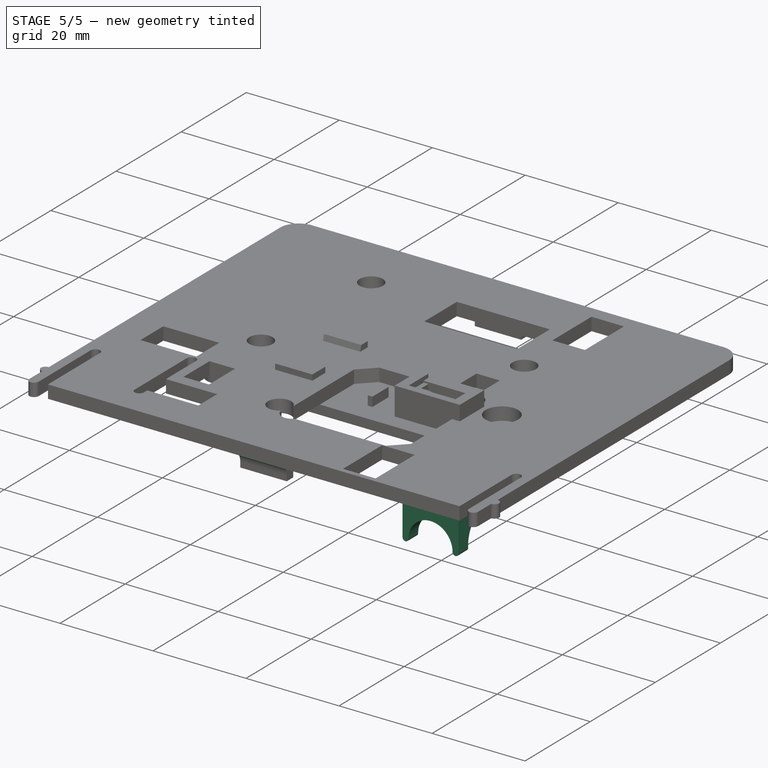
[diagram: stage 5 of 5 — iso view after this stage's code; geometry added in this stage tinted green]
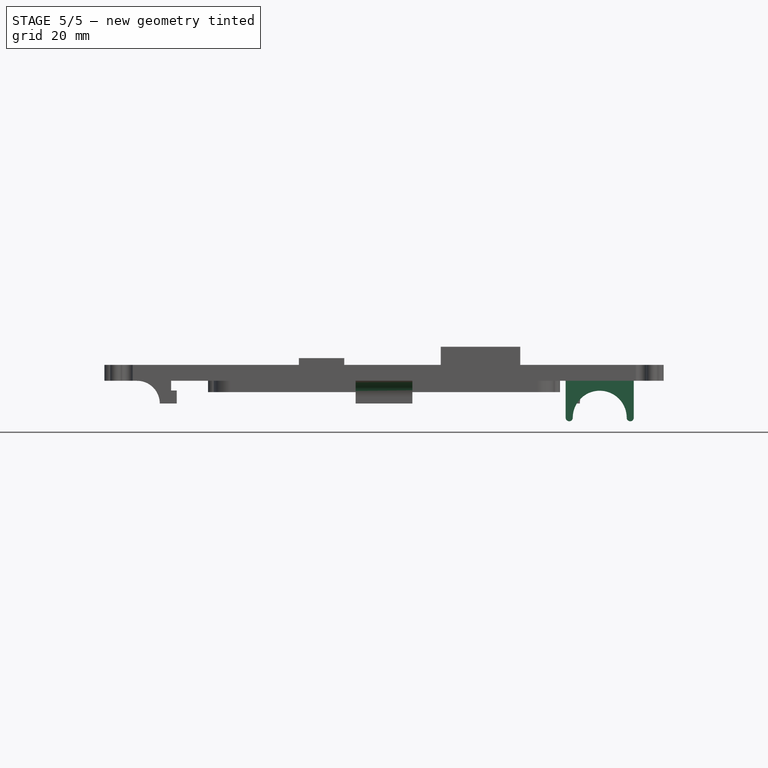
[diagram: stage 5 of 5 — front view after this stage's code; geometry added in this stage tinted green]
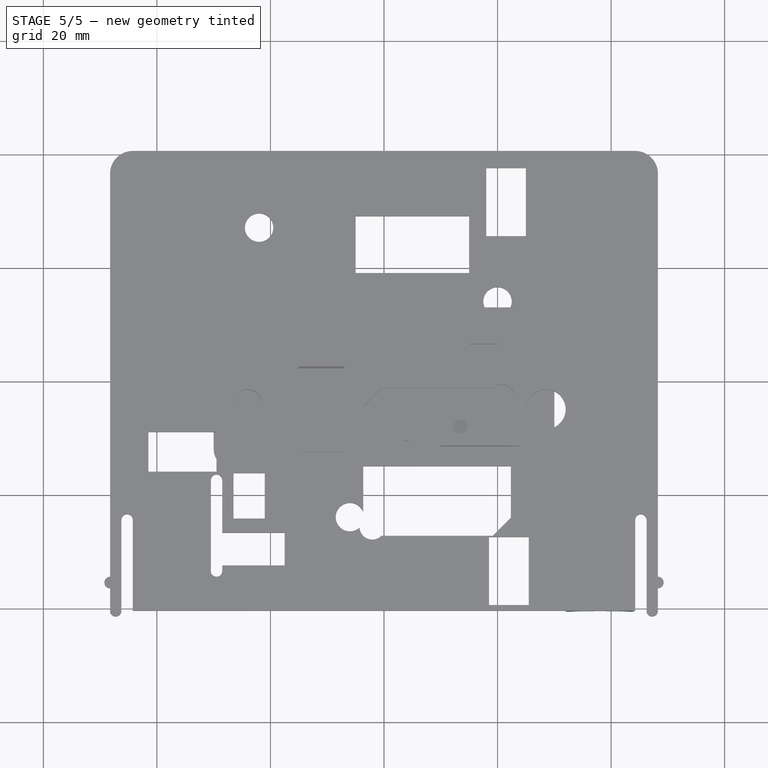
[diagram: stage 5 of 5 — top view after this stage's code; geometry added in this stage tinted green]
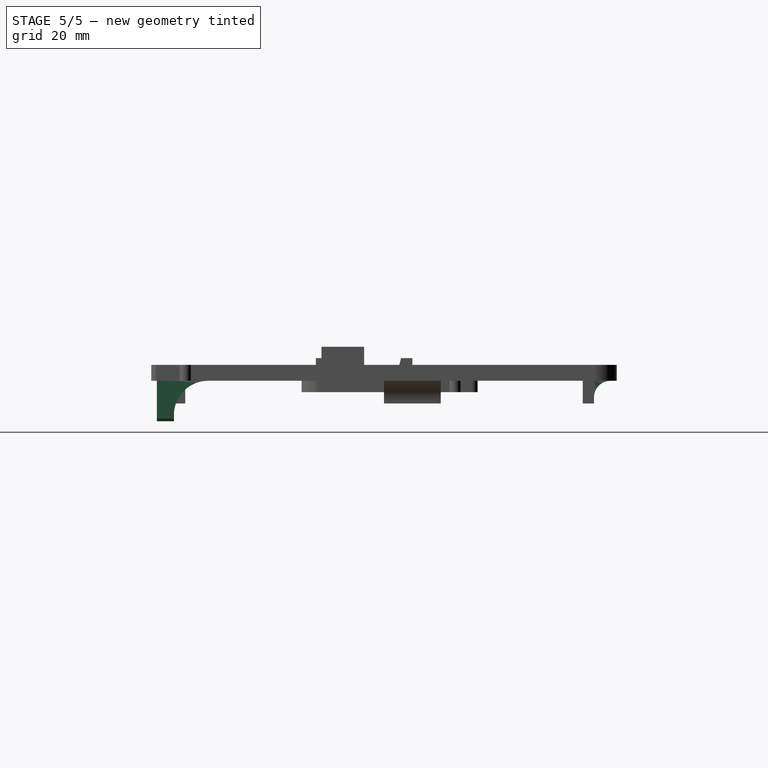
[diagram: stage 5 of 5 — right view after this stage's code; geometry added in this stage tinted green]
FEATURE [Sketcher::SketchObject] Sketch013
  ArcFitTolerance = 1e-06
  AttachmentSupport = -> [Fillet]
  FullyConstrained = true
  MakeInternals = false
  MapMode = 5
  Placement = pos=(0,-40.5,0) rot=(1,0,0;1.5708rad)
  sketch-geometry (6):
    g0: LineSegment StartX=32 StartY=0 StartZ=0 EndX=32 EndY=-6.5 EndZ=0
    g1: LineSegment StartX=44 StartY=0 StartZ=0 EndX=44 EndY=-6.5 EndZ=0
    g2: LineSegment StartX=32 StartY=0 StartZ=0 EndX=44 EndY=0 EndZ=0
    g3: ArcOfCircle CenterX=38 CenterY=-6.5 CenterZ=0 NormalX=0 NormalY=0 NormalZ=1 AngleXU=0 Radius=4.75 StartAngle=0 EndAngle=3.14159
    g4: ArcOfCircle CenterX=43.375 CenterY=-6.5 CenterZ=0 NormalX=0 NormalY=0 NormalZ=1 AngleXU=0 Radius=0.625 StartAngle=3.14159 EndAngle=6.28319
    g5: ArcOfCircle CenterX=32.625 CenterY=-6.5 CenterZ=0 NormalX=0 NormalY=0 NormalZ=1 AngleXU=0 Radius=0.625 StartAngle=3.14159 EndAngle=6.28319
  constraints (20):
    c: PointOnObject(g0,g-1)
    c: Vertical(g0)
    c: PointOnObject(g1,g-1)
    c: Vertical(g1)
    c: Coincident(g2,g0)
    c: Coincident(g2,g1)
    c: Distance(g-2,g0) = 32
    c: Distance(g0,g0) = 6.5
    c: DistanceX(g2,g2) = 12
    c: Horizontal(g0,g3)
    c: Symmetric(g1,g0,g3)
    c: Horizontal(g3,g1)
    c: Radius(g3) = 4.75
    c: Horizontal(g3,g3)
    c: Coincident(g4,g3)
    c: Coincident(g4,g1)
    c: Coincident(g5,g0)
    c: Coincident(g5,g3)
    c: Horizontal(g4,g5)
    c: Horizontal(g5,g0)
FEATURE [PartDesign::Pad] Pad008
  BaseFeature = -> Fillet
  Direction = (0,-1,2e-16)
  Length = 3
  Length2 = 10
  Profile = -> Sketch013
  ReferenceAxis = -> Sketch013 [N_Axis]
  Reversed = true
  Suppressed = false
  Type = 0
FEATURE [PartDesign::Fillet] Fillet001
  Base = -> Pad008 [Edge12]
  BaseFeature = -> Pad008
  Radius = 6
  SupportTransform = false
  Suppressed = false
  UseAllEdges = false
FEATURE [PartDesign::Fillet] Fillet002
  Base = -> Fillet001 [Edge44,Edge90]
  BaseFeature = -> Fillet001
  Radius = 2.9
  SupportTransform = false
  Suppressed = false
  UseAllEdges = false
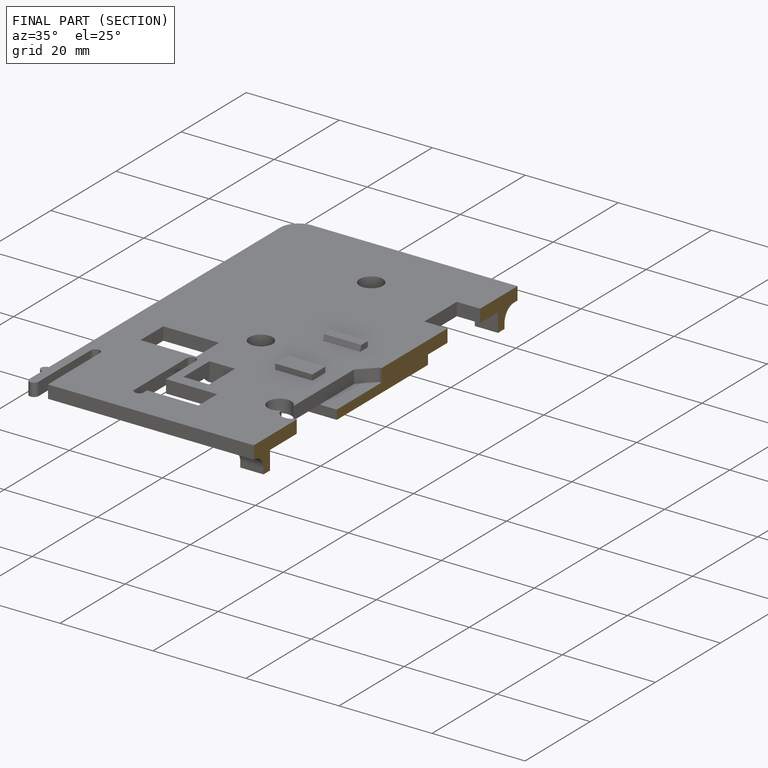
[diagram: finished part — half-section view (interior)]
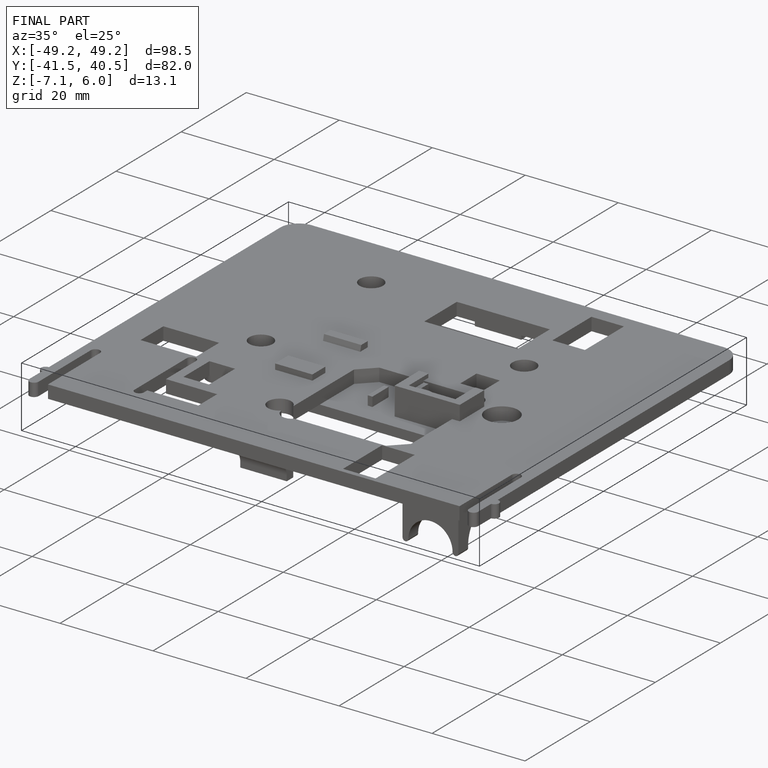
[diagram: finished part — iso view with bounding-box wireframe]
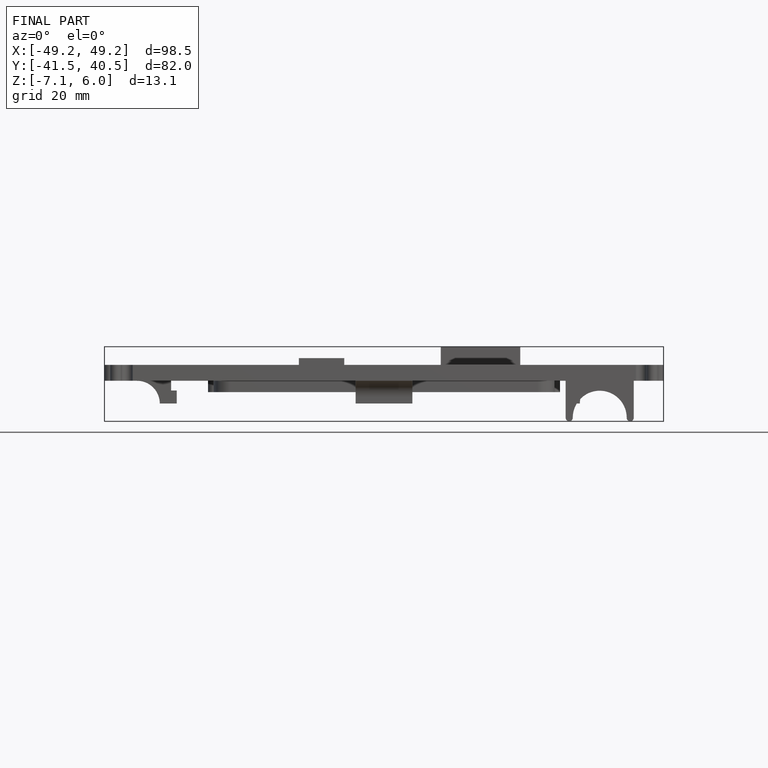
[diagram: finished part — front view with bounding-box wireframe]
